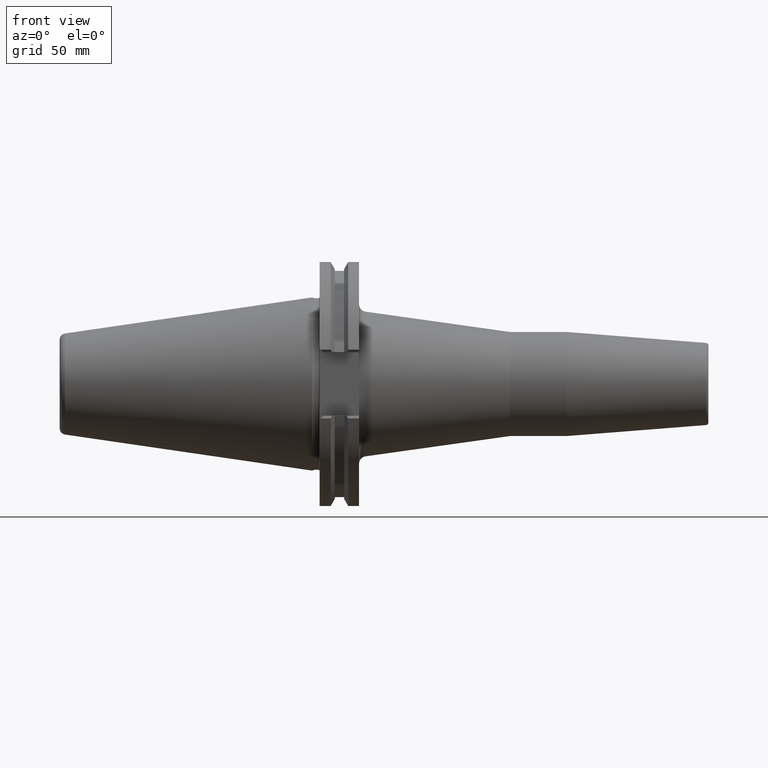
[diagram: clean part render]
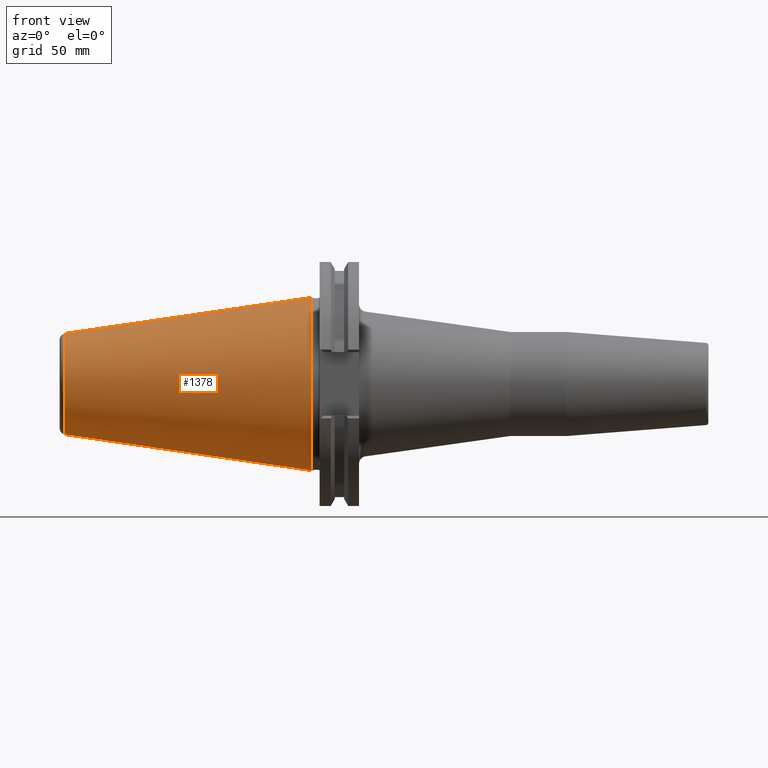
[diagram: same view with one face highlighted and labeled with its STEP entity id]
A machine part, front view. The second image highlights one B-rep face of the part: STEP entity #1378.
In plain terms, the highlighted conical surface has half-angle 8.297 deg.
Its self-contained STEP definition (entity closure, byte-faithful):
#20=CARTESIAN_POINT('',(6.536993168993E-13,0.E0,0.E0));
#21=DIRECTION('',(1.E0,0.E0,0.E0));
#22=DIRECTION('',(0.E0,0.E0,1.E0));
#23=AXIS2_PLACEMENT_3D('',#20,#21,#22);
#25=DIRECTION('',(-9.895329809878E-1,-2.393781456249E-10,1.443068935894E-1));
#26=VECTOR('',#25,1.006644236712E2);
#27=CARTESIAN_POINT('',(8.037375209824E-10,2.476718367343E-8,
-3.492499999978E1));
#28=LINE('',#27,#26);
#29=CARTESIAN_POINT('',(-9.961076723398E1,0.E0,0.E0));
#30=DIRECTION('',(-1.E0,0.E0,0.E0));
#31=DIRECTION('',(0.E0,0.E0,-1.E0));
#32=AXIS2_PLACEMENT_3D('',#29,#30,#31);
#34=DIRECTION('',(-9.895329809878E-1,2.393781965724E-10,-1.443068935894E-1));
#35=VECTOR('',#34,1.006644236712E2);
#36=CARTESIAN_POINT('',(8.037375209824E-10,-2.476719314581E-8,
3.492499999978E1));
#37=LINE('',#36,#35);
#1107=CARTESIAN_POINT('',(-9.961076723398E1,0.E0,-2.039842972482E1));
#1108=CARTESIAN_POINT('',(-9.961076723398E1,0.E0,2.039842972482E1));
#1109=VERTEX_POINT('',#1107);
#1110=VERTEX_POINT('',#1108);
#1111=CARTESIAN_POINT('',(6.536993168993E-13,0.E0,3.4925E1));
#1112=CARTESIAN_POINT('',(6.536993168993E-13,0.E0,-3.4925E1));
#1113=VERTEX_POINT('',#1111);
#1114=VERTEX_POINT('',#1112);
#1366=CARTESIAN_POINT('',(-4.980538361699E1,0.E0,0.E0));
#1367=DIRECTION('',(1.E0,0.E0,0.E0));
#1368=DIRECTION('',(0.E0,0.E0,1.E0));
#1369=AXIS2_PLACEMENT_3D('',#1366,#1367,#1368);
#1370=CONICAL_SURFACE('',#1369,2.766171486241E1,8.297145E0);
#1371=ORIENTED_EDGE('',*,*,#1357,.T.);
#1372=ORIENTED_EDGE('',*,*,#1332,.T.);
#1374=ORIENTED_EDGE('',*,*,#1373,.T.);
#1375=ORIENTED_EDGE('',*,*,#1328,.F.);
#1376=EDGE_LOOP('',(#1371,#1372,#1374,#1375));
#1377=FACE_OUTER_BOUND('',#1376,.F.);
#1378=ADVANCED_FACE('',(#1377),#1370,.T.);
#24=CIRCLE('',#23,3.4925E1);
#33=CIRCLE('',#32,2.039842972482E1);
#1328=EDGE_CURVE('',#1113,#1110,#37,.T.);
#1332=EDGE_CURVE('',#1114,#1109,#28,.T.);
#1357=EDGE_CURVE('',#1113,#1114,#24,.T.);
#1373=EDGE_CURVE('',#1109,#1110,#33,.T.);